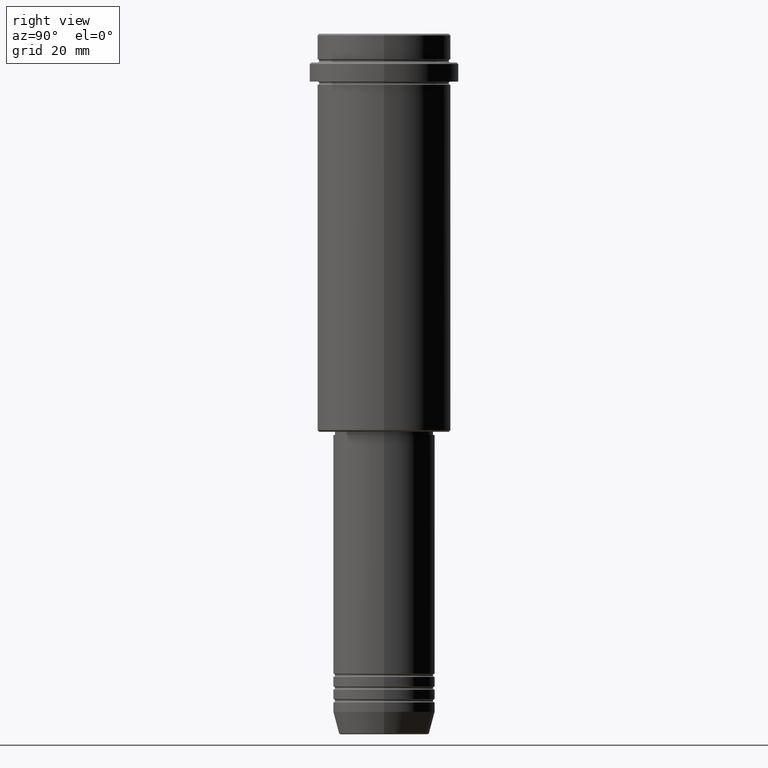
[diagram: clean part render]
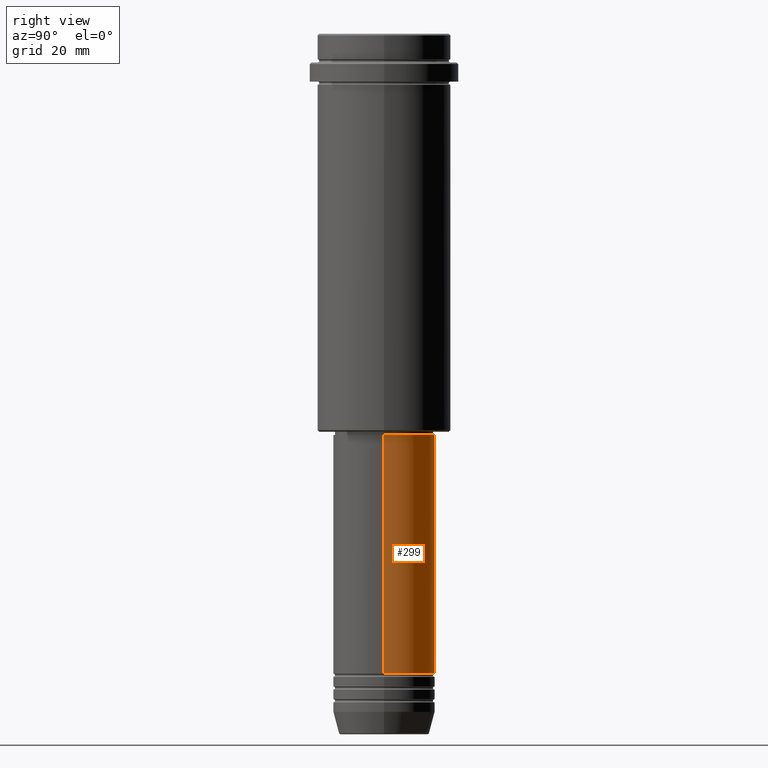
[diagram: same view with one face highlighted and labeled with its STEP entity id]
A machine part, right view. The second image highlights one B-rep face of the part: STEP entity #299.
In plain terms, the highlighted cylindrical surface (partial cylindrical patch) has radius 16 mm, axis along (-0, -0, 1).
Its self-contained STEP definition (entity closure, byte-faithful):
#61 = VECTOR ( 'NONE', #988, 1000.000000000000000 ) ;
#95 = CIRCLE ( 'NONE', #817, 16.00000000000000000 ) ;
#108 = ORIENTED_EDGE ( 'NONE', *, *, #843, .F. ) ;
#110 = CARTESIAN_POINT ( 'NONE',  ( 16.00000000000000000, 0.000000000000000000, -200.9999999999999147 ) ) ;
#137 = LINE ( 'NONE', #573, #354 ) ;
#168 = EDGE_CURVE ( 'NONE', #1153, #546, #95, .T. ) ;
#222 = DIRECTION ( 'NONE',  ( 1.000000000000000000, 0.000000000000000000, 0.000000000000000000 ) ) ;
#254 = CARTESIAN_POINT ( 'NONE',  ( 16.00000000000000355, 0.000000000000000000, -126.0000000000000000 ) ) ;
#288 = CIRCLE ( 'NONE', #436, 16.00000000000000355 ) ;
#289 = ORIENTED_EDGE ( 'NONE', *, *, #892, .F. ) ;
#299 = ADVANCED_FACE ( 'NONE', ( #1209 ), #547, .T. ) ;
#338 = ORIENTED_EDGE ( 'NONE', *, *, #1004, .T. ) ;
#354 = VECTOR ( 'NONE', #1039, 1000.000000000000000 ) ;
#373 = EDGE_LOOP ( 'NONE', ( #1312, #338, #289, #108 ) ) ;
#431 = CARTESIAN_POINT ( 'NONE',  ( 0.000000000000000000, 0.000000000000000000, 0.000000000000000000 ) ) ;
#436 = AXIS2_PLACEMENT_3D ( 'NONE', #1131, #578, #774 ) ;
#545 = CARTESIAN_POINT ( 'NONE',  ( 16.00000000000000000, 0.000000000000000000, 0.000000000000000000 ) ) ;
#546 = VERTEX_POINT ( 'NONE', #1087 ) ;
#547 = CYLINDRICAL_SURFACE ( 'NONE', #1164, 16.00000000000000000 ) ;
#573 = CARTESIAN_POINT ( 'NONE',  ( -16.00000000000000000, 1.959434878635765131E-15, 0.000000000000000000 ) ) ;
#578 = DIRECTION ( 'NONE',  ( -0.000000000000000000, -0.000000000000000000, 1.000000000000000000 ) ) ;
#639 = VERTEX_POINT ( 'NONE', #254 ) ;
#690 = LINE ( 'NONE', #545, #61 ) ;
#740 = CARTESIAN_POINT ( 'NONE',  ( -16.00000000000000355, 1.959434878635765526E-15, -126.0000000000000000 ) ) ;
#774 = DIRECTION ( 'NONE',  ( 1.000000000000000000, 0.000000000000000000, 0.000000000000000000 ) ) ;
#808 = DIRECTION ( 'NONE',  ( -0.000000000000000000, -0.000000000000000000, 1.000000000000000000 ) ) ;
#810 = VERTEX_POINT ( 'NONE', #740 ) ;
#817 = AXIS2_PLACEMENT_3D ( 'NONE', #925, #808, #1245 ) ;
#843 = EDGE_CURVE ( 'NONE', #1153, #639, #690, .T. ) ;
#876 = DIRECTION ( 'NONE',  ( -0.000000000000000000, -0.000000000000000000, 1.000000000000000000 ) ) ;
#892 = EDGE_CURVE ( 'NONE', #639, #810, #288, .T. ) ;
#925 = CARTESIAN_POINT ( 'NONE',  ( 0.000000000000000000, 0.000000000000000000, -200.9999999999999147 ) ) ;
#988 = DIRECTION ( 'NONE',  ( -0.000000000000000000, -0.000000000000000000, 1.000000000000000000 ) ) ;
#1004 = EDGE_CURVE ( 'NONE', #546, #810, #137, .T. ) ;
#1039 = DIRECTION ( 'NONE',  ( -0.000000000000000000, -0.000000000000000000, 1.000000000000000000 ) ) ;
#1087 = CARTESIAN_POINT ( 'NONE',  ( -16.00000000000000000, 1.959434878635765131E-15, -200.9999999999999147 ) ) ;
#1131 = CARTESIAN_POINT ( 'NONE',  ( 0.000000000000000000, 0.000000000000000000, -126.0000000000000000 ) ) ;
#1153 = VERTEX_POINT ( 'NONE', #110 ) ;
#1164 = AXIS2_PLACEMENT_3D ( 'NONE', #431, #876, #222 ) ;
#1209 = FACE_OUTER_BOUND ( 'NONE', #373, .T. ) ;
#1245 = DIRECTION ( 'NONE',  ( 1.000000000000000000, 0.000000000000000000, 0.000000000000000000 ) ) ;
#1312 = ORIENTED_EDGE ( 'NONE', *, *, #168, .T. ) ;